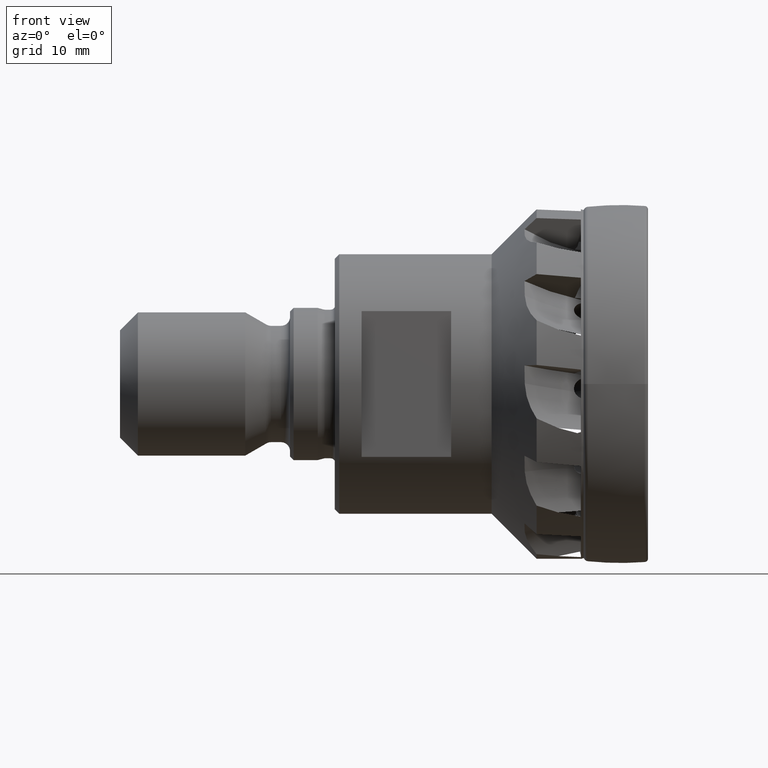
[diagram: clean part render]
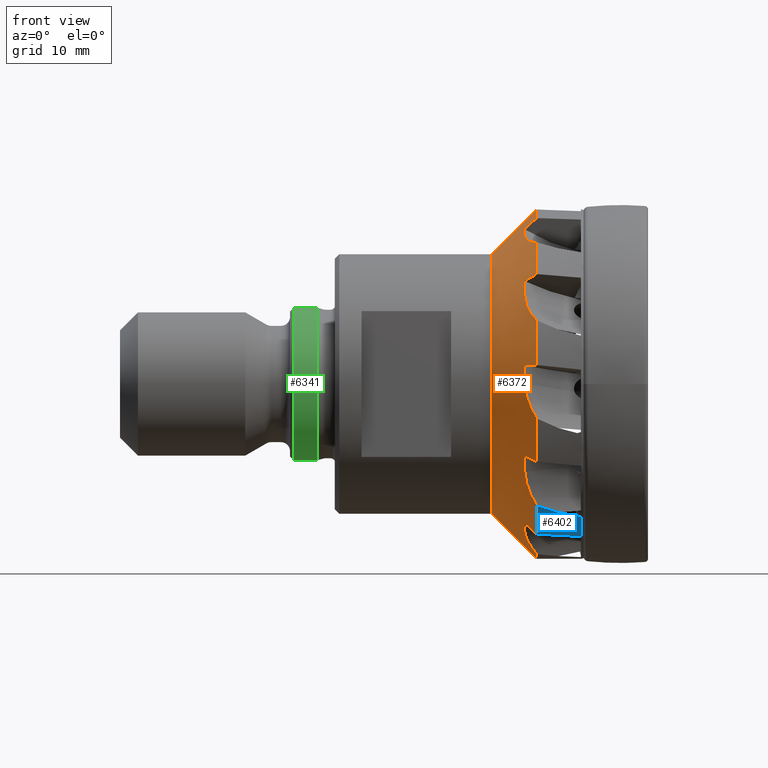
[diagram: same view with three faces highlighted in distinct colors, each labeled with its STEP entity id]
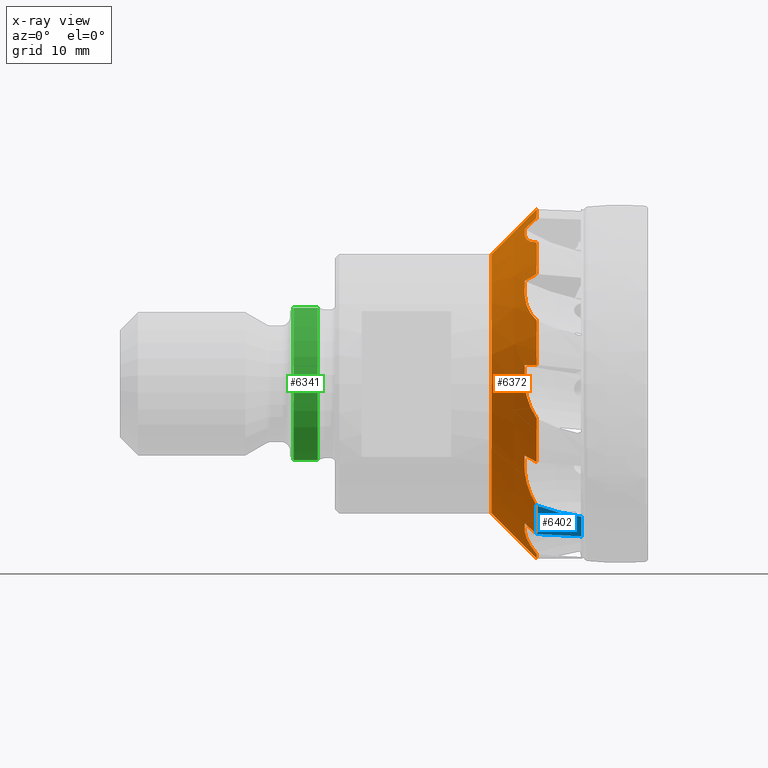
[diagram: x-ray of the same camera — body ghosted, the three highlighted faces saturated]
A machine part, front view with three faces highlighted in distinct colors.
The next image is the same camera in x-ray (body ghosted, the three faces saturated) — at least one of them is partly hidden behind the body in this view.
Their STEP definitions:

[orange] entity #6372 — the highlighted conical surface has half-angle 45 deg.
#167 = EDGE_LOOP ( 'NONE', ( #844, #843, #842, #841, #840, #839, #838, #837, #820, #819, #818, #817, #816, #815, #814, #813, #828, #827, #826, #825, #824, #823, #822, #821, #804 ) ) ;
#804 = ORIENTED_EDGE ( 'NONE', *, *, #6771, .F. ) ;
#813 = ORIENTED_EDGE ( 'NONE', *, *, #5806, .F. ) ;
#814 = ORIENTED_EDGE ( 'NONE', *, *, #5956, .F. ) ;
#815 = ORIENTED_EDGE ( 'NONE', *, *, #5840, .F. ) ;
#816 = ORIENTED_EDGE ( 'NONE', *, *, #6815, .F. ) ;
#817 = ORIENTED_EDGE ( 'NONE', *, *, #5808, .F. ) ;
#818 = ORIENTED_EDGE ( 'NONE', *, *, #5946, .F. ) ;
#819 = ORIENTED_EDGE ( 'NONE', *, *, #5836, .F. ) ;
#820 = ORIENTED_EDGE ( 'NONE', *, *, #6829, .F. ) ;
#821 = ORIENTED_EDGE ( 'NONE', *, *, #5810, .F. ) ;
#822 = ORIENTED_EDGE ( 'NONE', *, *, #5963, .F. ) ;
#823 = ORIENTED_EDGE ( 'NONE', *, *, #5832, .F. ) ;
#824 = ORIENTED_EDGE ( 'NONE', *, *, #6788, .F. ) ;
#825 = ORIENTED_EDGE ( 'NONE', *, *, #5804, .F. ) ;
#826 = ORIENTED_EDGE ( 'NONE', *, *, #5960, .F. ) ;
#827 = ORIENTED_EDGE ( 'NONE', *, *, #5830, .F. ) ;
#828 = ORIENTED_EDGE ( 'NONE', *, *, #6800, .F. ) ;
#837 = ORIENTED_EDGE ( 'NONE', *, *, #5803, .F. ) ;
#838 = ORIENTED_EDGE ( 'NONE', *, *, #5944, .F. ) ;
#839 = ORIENTED_EDGE ( 'NONE', *, *, #5842, .F. ) ;
#840 = ORIENTED_EDGE ( 'NONE', *, *, #6841, .F. ) ;
#841 = ORIENTED_EDGE ( 'NONE', *, *, #9840, .F. ) ;
#842 = ORIENTED_EDGE ( 'NONE', *, *, #9844, .T. ) ;
#843 = ORIENTED_EDGE ( 'NONE', *, *, #5799, .T. ) ;
#844 = ORIENTED_EDGE ( 'NONE', *, *, #9623, .F. ) ;
#1032 = CIRCLE ( 'NONE', #1033, 14.50000000000000000 ) ;
#1033 = AXIS2_PLACEMENT_3D ( 'NONE', #3575, #3576, #3577 ) ;
#1386 = LINE ( 'NONE', #1388, #8179 ) ;
#1388 = CARTESIAN_POINT ( 'NONE',  ( -12.00000000000000200, 2.391429037034993400E-015, 19.52749999999999600 ) ) ;
#1389 = DIRECTION ( 'NONE',  ( 0.7071067811865465700, 8.659560562354946400E-017, 0.7071067811865485700 ) ) ;
#1694 = CARTESIAN_POINT ( 'NONE',  ( -12.00000000000000200, -9.996731932388868800, -16.77464178222464100 ) ) ;
#1695 = CARTESIAN_POINT ( 'NONE',  ( -12.45141773891236700, -9.793318421093761800, -16.37036551565456600 ) ) ;
#1701 = CARTESIAN_POINT ( 'NONE',  ( -12.90279601430590300, -9.589879781806757800, -15.96605782114112900 ) ) ;
#1702 = CARTESIAN_POINT ( 'NONE',  ( -13.35412533337104400, -9.386409986145114500, -15.56171116380413400 ) ) ;
#1703 = CARTESIAN_POINT ( 'NONE',  ( -12.00000000000000200, -17.47884210055518000, -8.707085337462801900 ) ) ;
#1705 = CARTESIAN_POINT ( 'NONE',  ( -12.45141773891237200, -17.08915151431623200, -8.476960146999026300 ) ) ;
#1709 = CARTESIAN_POINT ( 'NONE',  ( -12.90279601430591000, -16.69942279783633400, -8.246822102884946700 ) ) ;
#1710 = CARTESIAN_POINT ( 'NONE',  ( -13.35412533337105500, -16.30964680605342200, -8.016668125565752600 ) ) ;
#1731 = CARTESIAN_POINT ( 'NONE',  ( -12.00000000000000200, -19.41154340139196300, 2.124909180618330700 ) ) ;
#1738 = CARTESIAN_POINT ( 'NONE',  ( -12.45141773891236700, -18.95929974791794200, 2.107820172990455100 ) ) ;
#1743 = CARTESIAN_POINT ( 'NONE',  ( -12.90279601430589700, -18.50701706803599900, 2.090721363776668600 ) ) ;
#1744 = CARTESIAN_POINT ( 'NONE',  ( -13.35412533337099500, -18.05468600349730600, 2.073610399469498300 ) ) ;
#1751 = CARTESIAN_POINT ( 'NONE',  ( -12.00000000000000200, -15.18121682769837800, 12.28226004774396400 ) ) ;
#1754 = CARTESIAN_POINT ( 'NONE',  ( -12.45141773891237100, -14.81000427156631200, 12.02338248120112900 ) ) ;
#1757 = CARTESIAN_POINT ( 'NONE',  ( -12.45141773891236900, -5.958637081482124600, 18.12160580479149300 ) ) ;
#1759 = CARTESIAN_POINT ( 'NONE',  ( -12.90279601430590600, -14.43876418346813000, 11.76447556977044200 ) ) ;
#1760 = CARTESIAN_POINT ( 'NONE',  ( -13.35412533337104800, -14.06748996314617500, 11.50553227410415900 ) ) ;
#1768 = CARTESIAN_POINT ( 'NONE',  ( -12.00000000000000200, -6.130961176562884400, 18.54008013201341500 ) ) ;
#1769 = CARTESIAN_POINT ( 'NONE',  ( -12.90279601430590600, -5.786305690081762900, 17.70309190617432900 ) ) ;
#1770 = CARTESIAN_POINT ( 'NONE',  ( -13.35412533337104800, -5.613965255630446900, 17.28452894591706700 ) ) ;
#2683 = CIRCLE ( 'NONE', #2707, 19.52749999999999600 ) ;
#2704 = VECTOR ( 'NONE', #5398, 1000.000000000000000 ) ;
#2707 = AXIS2_PLACEMENT_3D ( 'NONE', #5386, #5387, #5388 ) ;
#3276 = VERTEX_POINT ( 'NONE', #11497 ) ;
#3277 = VERTEX_POINT ( 'NONE', #11498 ) ;
#3325 = VERTEX_POINT ( 'NONE', #11546 ) ;
#3336 = VERTEX_POINT ( 'NONE', #11557 ) ;
#3345 = VERTEX_POINT ( 'NONE', #11566 ) ;
#3351 = VERTEX_POINT ( 'NONE', #11572 ) ;
#3575 = CARTESIAN_POINT ( 'NONE',  ( -17.02749999999998200, 0.0000000000000000000, 0.0000000000000000000 ) ) ;
#3576 = DIRECTION ( 'NONE',  ( 1.000000000000000000, -0.0000000000000000000, -0.0000000000000000000 ) ) ;
#3577 = DIRECTION ( 'NONE',  ( 0.0000000000000000000, 0.0000000000000000000, -1.000000000000000000 ) ) ;
#3581 = CARTESIAN_POINT ( 'NONE',  ( -12.00000000000000200, 0.0000000000000000000, 0.0000000000000000000 ) ) ;
#3582 = DIRECTION ( 'NONE',  ( 1.000000000000000000, -0.0000000000000000000, -0.0000000000000000000 ) ) ;
#3583 = DIRECTION ( 'NONE',  ( 0.0000000000000000000, 0.0000000000000000000, -1.000000000000000000 ) ) ;
#3584 = CARTESIAN_POINT ( 'NONE',  ( -12.00000000000000200, 0.0000000000000000000, 0.0000000000000000000 ) ) ;
#3585 = DIRECTION ( 'NONE',  ( 1.000000000000000000, -0.0000000000000000000, -0.0000000000000000000 ) ) ;
#3586 = DIRECTION ( 'NONE',  ( 0.0000000000000000000, 0.0000000000000000000, -1.000000000000000000 ) ) ;
#3587 = CARTESIAN_POINT ( 'NONE',  ( -12.00000000000000200, 0.0000000000000000000, 0.0000000000000000000 ) ) ;
#3588 = DIRECTION ( 'NONE',  ( 1.000000000000000000, -0.0000000000000000000, -0.0000000000000000000 ) ) ;
#3589 = DIRECTION ( 'NONE',  ( 0.0000000000000000000, 0.0000000000000000000, -1.000000000000000000 ) ) ;
#3590 = CARTESIAN_POINT ( 'NONE',  ( -12.00000000000000200, 0.0000000000000000000, 0.0000000000000000000 ) ) ;
#3591 = DIRECTION ( 'NONE',  ( 1.000000000000000000, -0.0000000000000000000, -0.0000000000000000000 ) ) ;
#3592 = DIRECTION ( 'NONE',  ( 0.0000000000000000000, 0.0000000000000000000, -1.000000000000000000 ) ) ;
#3595 = CARTESIAN_POINT ( 'NONE',  ( -12.00000000000000200, 0.0000000000000000000, 0.0000000000000000000 ) ) ;
#3596 = DIRECTION ( 'NONE',  ( 1.000000000000000000, -0.0000000000000000000, -0.0000000000000000000 ) ) ;
#3597 = DIRECTION ( 'NONE',  ( 0.0000000000000000000, 0.0000000000000000000, -1.000000000000000000 ) ) ;
#3653 = CARTESIAN_POINT ( 'NONE',  ( -13.35412533337104800, -14.06748996314617500, 11.50553227410415900 ) ) ;
#3660 = CARTESIAN_POINT ( 'NONE',  ( -13.36838950143772000, -14.48302671771570600, 10.97493646598593400 ) ) ;
#3680 = CARTESIAN_POINT ( 'NONE',  ( -13.36845952665350400, -6.253523129734415600, 17.06173106919737100 ) ) ;
#3681 = CARTESIAN_POINT ( 'NONE',  ( -13.35885651788389200, -14.88707561406218900, 10.43673353012622800 ) ) ;
#3682 = CARTESIAN_POINT ( 'NONE',  ( -13.32494707153037300, -15.28040683738157500, 9.891516567128734400 ) ) ;
#3702 = CARTESIAN_POINT ( 'NONE',  ( -13.35412533337105500, -16.30964680605342200, -8.016668125565752600 ) ) ;
#3703 = CARTESIAN_POINT ( 'NONE',  ( -13.35412533337104800, -5.613965255630446900, 17.28452894591706700 ) ) ;
#3704 = CARTESIAN_POINT ( 'NONE',  ( -13.36843800274453300, -15.99856592970495800, -8.617105819001821500 ) ) ;
#3705 = CARTESIAN_POINT ( 'NONE',  ( -13.35869141345807900, -6.884327122180541100, 16.82730184182169400 ) ) ;
#3706 = CARTESIAN_POINT ( 'NONE',  ( -13.32494707153139600, -7.506938632316959600, 16.58248490077189200 ) ) ;
#3727 = CARTESIAN_POINT ( 'NONE',  ( -13.35895997310231200, -18.16621888724286300, 0.7334263613639220300 ) ) ;
#3728 = CARTESIAN_POINT ( 'NONE',  ( -13.36834626547629600, -18.11720593524151100, 1.404622597222110900 ) ) ;
#3729 = CARTESIAN_POINT ( 'NONE',  ( -13.35874185885978700, -15.67677699080171500, -9.208160137280172500 ) ) ;
#3730 = CARTESIAN_POINT ( 'NONE',  ( -13.32494707153140300, -15.34535035706512400, -9.790462477974257300 ) ) ;
#3752 = CARTESIAN_POINT ( 'NONE',  ( -13.35889978558266700, -8.212610901820497100, -16.22045092694758500 ) ) ;
#3753 = CARTESIAN_POINT ( 'NONE',  ( -13.35412533337099500, -18.05468600349730600, 2.073610399469498300 ) ) ;
#3755 = CARTESIAN_POINT ( 'NONE',  ( -13.32494707153139900, -18.20245383777362500, 0.06006161353929373400 ) ) ;
#3757 = CARTESIAN_POINT ( 'NONE',  ( -13.36837135644139700, -8.802821142696339900, -15.89707954188599900 ) ) ;
#3758 = CARTESIAN_POINT ( 'NONE',  ( -13.35412533337104400, -9.386409986145114500, -15.56171116380413400 ) ) ;
#3759 = CARTESIAN_POINT ( 'NONE',  ( -13.32494707153139600, -7.616206563052884300, -16.53258390883322100 ) ) ;
#4177 = CARTESIAN_POINT ( 'NONE',  ( -12.64822328558747900, 2.231942278422366700E-015, 18.87927671441251600 ) ) ;
#4181 = CARTESIAN_POINT ( 'NONE',  ( -12.46279781287039000, -0.3852328533482683400, 19.06470218712960500 ) ) ;
#4186 = CARTESIAN_POINT ( 'NONE',  ( -12.24358420179304300, -0.7490119537043782300, 19.27202946251598100 ) ) ;
#4187 = CARTESIAN_POINT ( 'NONE',  ( -11.99999999998937000, -1.082537751060655500, 19.49747081720969500 ) ) ;
#4215 = CARTESIAN_POINT ( 'NONE',  ( -13.32494707153139600, -7.506938632316959600, 16.58248490077189200 ) ) ;
#4219 = CARTESIAN_POINT ( 'NONE',  ( -13.28859064116695500, -8.177745372645672400, 16.31871712338711000 ) ) ;
#4226 = CARTESIAN_POINT ( 'NONE',  ( -13.14813049340369700, -8.847965528193269000, 16.12233022931280500 ) ) ;
#4227 = CARTESIAN_POINT ( 'NONE',  ( -12.68541851912863700, -10.19148283484517500, 15.86103763030525600 ) ) ;
#4228 = CARTESIAN_POINT ( 'NONE',  ( -12.37396504623757700, -10.83393266689485100, 15.80271942246515900 ) ) ;
#4229 = CARTESIAN_POINT ( 'NONE',  ( -12.00000000000000000, -11.45181726841825300, 15.81705211159011700 ) ) ;
#4244 = CARTESIAN_POINT ( 'NONE',  ( -13.32494707153037300, -15.28040683738157500, 9.891516567128734400 ) ) ;
#4248 = CARTESIAN_POINT ( 'NONE',  ( -13.30700599510188000, -15.48851361289035300, 9.603048890538108400 ) ) ;
#4253 = CARTESIAN_POINT ( 'NONE',  ( -13.26315032292711700, -15.70811817342070100, 9.325311756497230300 ) ) ;
#4254 = CARTESIAN_POINT ( 'NONE',  ( -13.12468920553745400, -16.17073652737587600, 8.791511364867899300 ) ) ;
#4255 = CARTESIAN_POINT ( 'NONE',  ( -13.03096337434863700, -16.41020618043299000, 8.539795150347741200 ) ) ;
#4256 = CARTESIAN_POINT ( 'NONE',  ( -12.68829047848226900, -17.14259083156978000, 7.839119770591032000 ) ) ;
#4257 = CARTESIAN_POINT ( 'NONE',  ( -12.37332612303247500, -17.65858059569423200, 7.436277195291933300 ) ) ;
#4258 = CARTESIAN_POINT ( 'NONE',  ( -11.99999999998583700, -18.18522571776184200, 7.114831118488083900 ) ) ;
#4281 = CARTESIAN_POINT ( 'NONE',  ( -13.32494707153139900, -18.20245383777362500, 0.06006161353929373400 ) ) ;
#4285 = CARTESIAN_POINT ( 'NONE',  ( -13.30695388721281900, -18.22162250947060300, -0.2961554529752773400 ) ) ;
#4290 = CARTESIAN_POINT ( 'NONE',  ( -13.26296962331773500, -18.25628034489146100, -0.6481645204369131900 ) ) ;
#4291 = CARTESIAN_POINT ( 'NONE',  ( -13.12526029577404100, -18.35632924346735000, -1.344032080454261800 ) ) ;
#4292 = CARTESIAN_POINT ( 'NONE',  ( -13.03086869130440400, -18.42217221486361500, -1.688317911825745600 ) ) ;
#4293 = CARTESIAN_POINT ( 'NONE',  ( -12.80188338965853300, -18.58074708610858700, -2.346493527634376800 ) ) ;
#4294 = CARTESIAN_POINT ( 'NONE',  ( -12.66682733594082300, -18.67383547204763200, -2.663470338927870900 ) ) ;
#4295 = CARTESIAN_POINT ( 'NONE',  ( -12.35942202427597400, -18.88846404955148000, -3.274503210397287800 ) ) ;
#4296 = CARTESIAN_POINT ( 'NONE',  ( -12.18674424710689400, -19.01026733872961900, -3.568606010599000700 ) ) ;
#4297 = CARTESIAN_POINT ( 'NONE',  ( -11.99999999998580200, -19.14495349235754400, -3.846298483740066200 ) ) ;
#4317 = CARTESIAN_POINT ( 'NONE',  ( -13.32494707153140300, -15.34535035706512400, -9.790462477974257300 ) ) ;
#4321 = CARTESIAN_POINT ( 'NONE',  ( -13.30686701669498400, -15.16803864168190200, -10.10199153566063900 ) ) ;
#4328 = CARTESIAN_POINT ( 'NONE',  ( -13.26261439274308400, -15.00679060653959800, -10.41732345399271700 ) ) ;
#4329 = CARTESIAN_POINT ( 'NONE',  ( -13.12503089661706700, -14.71539471861066600, -11.05560370960807000 ) ) ;
#4330 = CARTESIAN_POINT ( 'NONE',  ( -13.03049783488119900, -14.58431325190887400, -11.38154341570424100 ) ) ;
#4331 = CARTESIAN_POINT ( 'NONE',  ( -12.68450010437347000, -14.24902858740453800, -12.34643135524322900 ) ) ;
#4332 = CARTESIAN_POINT ( 'NONE',  ( -12.37447707938345300, -14.10014212393306500, -12.97178012284988700 ) ) ;
#4333 = CARTESIAN_POINT ( 'NONE',  ( -11.99999999998579800, -14.02629380490696300, -13.58625549402715600 ) ) ;
#4359 = CARTESIAN_POINT ( 'NONE',  ( -13.32494707153139600, -7.616206563052884300, -16.53258390883322100 ) ) ;
#4364 = CARTESIAN_POINT ( 'NONE',  ( -13.30695388721287200, -7.300143076063066300, -16.69799826323438200 ) ) ;
#4368 = CARTESIAN_POINT ( 'NONE',  ( -13.26296962331799300, -6.994341750797913100, -16.87575399055873100 ) ) ;
#4369 = CARTESIAN_POINT ( 'NONE',  ( -13.12526029577500200, -6.402920168181215600, -17.25583550129424300 ) ) ;
#4370 = CARTESIAN_POINT ( 'NONE',  ( -13.03086869130585700, -6.117098919237849800, -17.45874987786036700 ) ) ;
#4371 = CARTESIAN_POINT ( 'NONE',  ( -12.80188338966115500, -5.584275702737340200, -17.87641068640125800 ) ) ;
#4372 = CARTESIAN_POINT ( 'NONE',  ( -12.66682733594415000, -5.334613766455025700, -18.09276378683135900 ) ) ;
#4373 = CARTESIAN_POINT ( 'NONE',  ( -12.35942202428088300, -4.867958649668231900, -18.54182903629070000 ) ) ;
#4374 = CARTESIAN_POINT ( 'NONE',  ( -12.18674424711265100, -4.651032247639248500, -18.77479992383541300 ) ) ;
#4375 = CARTESIAN_POINT ( 'NONE',  ( -11.99999999998390300, -4.454384939460537000, -19.01267238083870800 ) ) ;
#4551 = AXIS2_PLACEMENT_3D ( 'NONE', #3584, #3585, #3586 ) ;
#4553 = CIRCLE ( 'NONE', #4551, 19.52749999999999600 ) ;
#4748 = CONICAL_SURFACE ( 'NONE', #4749, 19.52749999999999600, 0.7853981633974497200 ) ;
#4749 = AXIS2_PLACEMENT_3D ( 'NONE', #8540, #8542, #8539 ) ;
#4889 = B_SPLINE_CURVE_WITH_KNOTS ( 'NONE', 3,
 ( #4359, #4364, #4368, #4369, #4370, #4371, #4372, #4373, #4374, #4375 ),
 .UNSPECIFIED., .F., .F.,
 ( 4, 2, 2, 2, 4 ),
 ( 0.004911172192141903200, 0.005979833985657517800, 0.007048495779173132400, 0.008117157572688747000, 0.009185819366204361600 ),
 .UNSPECIFIED. ) ;
#4900 = B_SPLINE_CURVE_WITH_KNOTS ( 'NONE', 3,
 ( #4177, #4181, #4186, #4187 ),
 .UNSPECIFIED., .F., .F.,
 ( 4, 4 ),
 ( 0.007791885502192534200, 0.009185819366210485100 ),
 .UNSPECIFIED. ) ;
#4905 = B_SPLINE_CURVE_WITH_KNOTS ( 'NONE', 3,
 ( #4317, #4321, #4328, #4329, #4330, #4331, #4332, #4333 ),
 .UNSPECIFIED., .F., .F.,
 ( 4, 2, 2, 4 ),
 ( 0.0004323090273732587900, 0.001502836894086141900, 0.002573364760799025200, 0.004714420494224791700 ),
 .UNSPECIFIED. ) ;
#4911 = B_SPLINE_CURVE_WITH_KNOTS ( 'NONE', 3,
 ( #4244, #4248, #4253, #4254, #4255, #4256, #4257, #4258 ),
 .UNSPECIFIED., .F., .F.,
 ( 4, 2, 2, 4 ),
 ( 0.002987934480018719500, 0.004055813754263023700, 0.005123693028507327900, 0.007259451576995939000 ),
 .UNSPECIFIED. ) ;
#4919 = B_SPLINE_CURVE_WITH_KNOTS ( 'NONE', 3,
 ( #4281, #4285, #4290, #4291, #4292, #4293, #4294, #4295, #4296, #4297 ),
 .UNSPECIFIED., .F., .F.,
 ( 4, 2, 2, 2, 4 ),
 ( 0.004911172192141902300, 0.005979833985660698400, 0.007048495779179493600, 0.008117157572698289700, 0.009185819366217084000 ),
 .UNSPECIFIED. ) ;
#4922 = B_SPLINE_CURVE_WITH_KNOTS ( 'NONE', 3,
 ( #4215, #4219, #4226, #4227, #4228, #4229 ),
 .UNSPECIFIED., .F., .F.,
 ( 4, 2, 4 ),
 ( 0.0001038139776742350600, 0.002240823431274717600, 0.004377832884875200800 ),
 .UNSPECIFIED. ) ;
#5384 = CARTESIAN_POINT ( 'NONE',  ( -12.00000000000000200, 0.0000000000000000000, -19.52749999999999600 ) ) ;
#5386 = CARTESIAN_POINT ( 'NONE',  ( -12.00000000000000200, 0.0000000000000000000, 0.0000000000000000000 ) ) ;
#5387 = DIRECTION ( 'NONE',  ( 1.000000000000000000, -0.0000000000000000000, -0.0000000000000000000 ) ) ;
#5388 = DIRECTION ( 'NONE',  ( 0.0000000000000000000, 0.0000000000000000000, -1.000000000000000000 ) ) ;
#5394 = LINE ( 'NONE', #5384, #2704 ) ;
#5398 = DIRECTION ( 'NONE',  ( 0.7071067811865465700, 0.0000000000000000000, -0.7071067811865485700 ) ) ;
#5799 = EDGE_CURVE ( 'NONE', #9407, #9406, #1032, .T. ) ;
#5803 = EDGE_CURVE ( 'NONE', #9260, #9182, #9949, .T. ) ;
#5804 = EDGE_CURVE ( 'NONE', #9256, #9317, #4553, .T. ) ;
#5806 = EDGE_CURVE ( 'NONE', #9240, #3325, #8764, .T. ) ;
#5808 = EDGE_CURVE ( 'NONE', #9255, #3345, #9925, .T. ) ;
#5810 = EDGE_CURVE ( 'NONE', #9235, #3276, #7957, .T. ) ;
#5830 = EDGE_CURVE ( 'NONE', #3351, #9228, #11309, .T. ) ;
#5832 = EDGE_CURVE ( 'NONE', #3336, #9253, #11282, .T. ) ;
#5836 = EDGE_CURVE ( 'NONE', #3277, #9247, #11258, .T. ) ;
#5840 = EDGE_CURVE ( 'NONE', #9205, #9224, #11292, .T. ) ;
#5842 = EDGE_CURVE ( 'NONE', #9202, #9265, #11345, .T. ) ;
#5944 = EDGE_CURVE ( 'NONE', #9182, #9202, #11319, .T. ) ;
#5946 = EDGE_CURVE ( 'NONE', #3345, #3277, #11311, .T. ) ;
#5956 = EDGE_CURVE ( 'NONE', #3325, #9205, #11298, .T. ) ;
#5960 = EDGE_CURVE ( 'NONE', #9317, #3351, #11285, .T. ) ;
#5963 = EDGE_CURVE ( 'NONE', #3276, #3336, #11283, .T. ) ;
#6372 = ADVANCED_FACE ( 'NONE', ( #8541 ), #4748, .T. ) ;
#6771 = EDGE_CURVE ( 'NONE', #9342, #9235, #4900, .T. ) ;
#6788 = EDGE_CURVE ( 'NONE', #9253, #9256, #4922, .T. ) ;
#6800 = EDGE_CURVE ( 'NONE', #9228, #9240, #4911, .T. ) ;
#6815 = EDGE_CURVE ( 'NONE', #9224, #9255, #4919, .T. ) ;
#6829 = EDGE_CURVE ( 'NONE', #9247, #9260, #4905, .T. ) ;
#6841 = EDGE_CURVE ( 'NONE', #9265, #9356, #4889, .T. ) ;
#7316 = CARTESIAN_POINT ( 'NONE',  ( -12.00000000000000200, -9.996731932388868800, -16.77464178222464100 ) ) ;
#7332 = CARTESIAN_POINT ( 'NONE',  ( -13.35412533337104400, -9.386409986145114500, -15.56171116380413400 ) ) ;
#7335 = CARTESIAN_POINT ( 'NONE',  ( -13.35412533337099500, -18.05468600349730600, 2.073610399469498300 ) ) ;
#7354 = CARTESIAN_POINT ( 'NONE',  ( -13.32494707153139900, -18.20245383777362500, 0.06006161353929373400 ) ) ;
#7358 = CARTESIAN_POINT ( 'NONE',  ( -13.32494707153037300, -15.28040683738157500, 9.891516567128734400 ) ) ;
#7365 = CARTESIAN_POINT ( 'NONE',  ( -11.99999999998937000, -1.082537751060655500, 19.49747081720969500 ) ) ;
#7370 = CARTESIAN_POINT ( 'NONE',  ( -11.99999999998583700, -18.18522571776184200, 7.114831118488083900 ) ) ;
#7377 = CARTESIAN_POINT ( 'NONE',  ( -13.32494707153140300, -15.34535035706512400, -9.790462477974257300 ) ) ;
#7383 = CARTESIAN_POINT ( 'NONE',  ( -13.32494707153139600, -7.506938632316959600, 16.58248490077189200 ) ) ;
#7385 = CARTESIAN_POINT ( 'NONE',  ( -11.99999999998580200, -19.14495349235754400, -3.846298483740066200 ) ) ;
#7386 = CARTESIAN_POINT ( 'NONE',  ( -12.00000000000000000, -11.45181726841825300, 15.81705211159011700 ) ) ;
#7390 = CARTESIAN_POINT ( 'NONE',  ( -11.99999999998579800, -14.02629380490696300, -13.58625549402715600 ) ) ;
#7395 = CARTESIAN_POINT ( 'NONE',  ( -13.32494707153139600, -7.616206563052884300, -16.53258390883322100 ) ) ;
#7447 = CARTESIAN_POINT ( 'NONE',  ( -12.00000000000000200, -15.18121682769837800, 12.28226004774396400 ) ) ;
#7486 = CARTESIAN_POINT ( 'NONE',  ( -12.64822328558747900, 2.231942278422366700E-015, 18.87927671441251600 ) ) ;
#7495 = CARTESIAN_POINT ( 'NONE',  ( -12.00000000000000200, 0.0000000000000000000, -19.52749999999999600 ) ) ;
#7508 = CARTESIAN_POINT ( 'NONE',  ( -11.99999999998390300, -4.454384939460537000, -19.01267238083870800 ) ) ;
#7562 = CARTESIAN_POINT ( 'NONE',  ( -17.02749999999998200, 0.0000000000000000000, -14.50000000000000000 ) ) ;
#7563 = CARTESIAN_POINT ( 'NONE',  ( -17.02749999999998200, 2.083583447900197800E-015, 14.50000000000000200 ) ) ;
#7957 = CIRCLE ( 'NONE', #7959, 19.52749999999999600 ) ;
#7959 = AXIS2_PLACEMENT_3D ( 'NONE', #3595, #3596, #3597 ) ;
#7960 = AXIS2_PLACEMENT_3D ( 'NONE', #3590, #3591, #3592 ) ;
#8179 = VECTOR ( 'NONE', #1389, 1000.000000000000000 ) ;
#8539 = DIRECTION ( 'NONE',  ( 0.0000000000000000000, 0.0000000000000000000, -1.000000000000000000 ) ) ;
#8540 = CARTESIAN_POINT ( 'NONE',  ( -12.00000000000000200, 0.0000000000000000000, 0.0000000000000000000 ) ) ;
#8541 = FACE_OUTER_BOUND ( 'NONE', #167, .T. ) ;
#8542 = DIRECTION ( 'NONE',  ( 1.000000000000000000, -0.0000000000000000000, -0.0000000000000000000 ) ) ;
#8764 = CIRCLE ( 'NONE', #8765, 19.52749999999999600 ) ;
#8765 = AXIS2_PLACEMENT_3D ( 'NONE', #3587, #3588, #3589 ) ;
#9182 = VERTEX_POINT ( 'NONE', #7316 ) ;
#9202 = VERTEX_POINT ( 'NONE', #7332 ) ;
#9205 = VERTEX_POINT ( 'NONE', #7335 ) ;
#9224 = VERTEX_POINT ( 'NONE', #7354 ) ;
#9228 = VERTEX_POINT ( 'NONE', #7358 ) ;
#9235 = VERTEX_POINT ( 'NONE', #7365 ) ;
#9240 = VERTEX_POINT ( 'NONE', #7370 ) ;
#9247 = VERTEX_POINT ( 'NONE', #7377 ) ;
#9253 = VERTEX_POINT ( 'NONE', #7383 ) ;
#9255 = VERTEX_POINT ( 'NONE', #7385 ) ;
#9256 = VERTEX_POINT ( 'NONE', #7386 ) ;
#9260 = VERTEX_POINT ( 'NONE', #7390 ) ;
#9265 = VERTEX_POINT ( 'NONE', #7395 ) ;
#9317 = VERTEX_POINT ( 'NONE', #7447 ) ;
#9342 = VERTEX_POINT ( 'NONE', #7486 ) ;
#9347 = VERTEX_POINT ( 'NONE', #7495 ) ;
#9356 = VERTEX_POINT ( 'NONE', #7508 ) ;
#9406 = VERTEX_POINT ( 'NONE', #7562 ) ;
#9407 = VERTEX_POINT ( 'NONE', #7563 ) ;
#9623 = EDGE_CURVE ( 'NONE', #9407, #9342, #1386, .T. ) ;
#9840 = EDGE_CURVE ( 'NONE', #9356, #9347, #2683, .T. ) ;
#9844 = EDGE_CURVE ( 'NONE', #9406, #9347, #5394, .T. ) ;
#9925 = CIRCLE ( 'NONE', #7960, 19.52749999999999600 ) ;
#9948 = AXIS2_PLACEMENT_3D ( 'NONE', #3581, #3582, #3583 ) ;
#9949 = CIRCLE ( 'NONE', #9948, 19.52749999999999600 ) ;
#11258 = B_SPLINE_CURVE_WITH_KNOTS ( 'NONE', 3,
 ( #3702, #3704, #3729, #3730 ),
 .UNSPECIFIED., .F., .F.,
 ( 4, 4 ),
 ( 0.0004567821357779263700, 0.002465826387814190000 ),
 .UNSPECIFIED. ) ;
#11282 = B_SPLINE_CURVE_WITH_KNOTS ( 'NONE', 3,
 ( #3703, #3680, #3705, #3706 ),
 .UNSPECIFIED., .F., .F.,
 ( 4, 4 ),
 ( 0.0001179907568379309400, 0.002118348836189511200 ),
 .UNSPECIFIED. ) ;
#11283 = B_SPLINE_CURVE_WITH_KNOTS ( 'NONE', 3,
 ( #1768, #1757, #1769, #1770 ),
 .UNSPECIFIED., .F., .F.,
 ( 4, 4 ),
 ( 2.832027944942234100E-007, 0.001917924717713383400 ),
 .UNSPECIFIED. ) ;
#11285 = B_SPLINE_CURVE_WITH_KNOTS ( 'NONE', 3,
 ( #1751, #1754, #1759, #1760 ),
 .UNSPECIFIED., .F., .F.,
 ( 4, 4 ),
 ( 2.832027878390748500E-007, 0.001917924696171891700 ),
 .UNSPECIFIED. ) ;
#11292 = B_SPLINE_CURVE_WITH_KNOTS ( 'NONE', 3,
 ( #3753, #3728, #3727, #3755 ),
 .UNSPECIFIED., .F., .F.,
 ( 4, 4 ),
 ( 0.004968968016972949800, 0.006984860348377443900 ),
 .UNSPECIFIED. ) ;
#11298 = B_SPLINE_CURVE_WITH_KNOTS ( 'NONE', 3,
 ( #1731, #1738, #1743, #1744 ),
 .UNSPECIFIED., .F., .F.,
 ( 4, 4 ),
 ( 2.832027813148789100E-007, 0.001917924666654904100 ),
 .UNSPECIFIED. ) ;
#11309 = B_SPLINE_CURVE_WITH_KNOTS ( 'NONE', 3,
 ( #3653, #3660, #3681, #3682 ),
 .UNSPECIFIED., .F., .F.,
 ( 4, 4 ),
 ( 0.002333850293465467800, 0.004352715805775475900 ),
 .UNSPECIFIED. ) ;
#11311 = B_SPLINE_CURVE_WITH_KNOTS ( 'NONE', 3,
 ( #1703, #1705, #1709, #1710 ),
 .UNSPECIFIED., .F., .F.,
 ( 4, 4 ),
 ( 2.832027928905857000E-007, 0.001917924714320202900 ),
 .UNSPECIFIED. ) ;
#11319 = B_SPLINE_CURVE_WITH_KNOTS ( 'NONE', 3,
 ( #1694, #1695, #1701, #1702 ),
 .UNSPECIFIED., .F., .F.,
 ( 4, 4 ),
 ( 2.832027862525319000E-007, 0.001917924689409450400 ),
 .UNSPECIFIED. ) ;
#11345 = B_SPLINE_CURVE_WITH_KNOTS ( 'NONE', 3,
 ( #3758, #3757, #3752, #3759 ),
 .UNSPECIFIED., .F., .F.,
 ( 4, 4 ),
 ( 0.003451904834163905000, 0.005470882781547860100 ),
 .UNSPECIFIED. ) ;
#11497 = CARTESIAN_POINT ( 'NONE',  ( -12.00000000000000200, -6.130961176562884400, 18.54008013201341500 ) ) ;
#11498 = CARTESIAN_POINT ( 'NONE',  ( -13.35412533337105500, -16.30964680605342200, -8.016668125565752600 ) ) ;
#11546 = CARTESIAN_POINT ( 'NONE',  ( -12.00000000000000200, -19.41154340139196300, 2.124909180618330700 ) ) ;
#11557 = CARTESIAN_POINT ( 'NONE',  ( -13.35412533337104800, -5.613965255630446900, 17.28452894591706700 ) ) ;
#11566 = CARTESIAN_POINT ( 'NONE',  ( -12.00000000000000200, -17.47884210055518000, -8.707085337462801900 ) ) ;
#11572 = CARTESIAN_POINT ( 'NONE',  ( -13.35412533337104800, -14.06748996314617500, 11.50553227410415900 ) ) ;

[blue] entity #6402 — the highlighted cylindrical surface (partial cylindrical patch) has radius 19.5275 mm, axis along (1, -0, -0).
#110 = EDGE_LOOP ( 'NONE', ( #870, #869, #852, #851 ) ) ;
#851 = ORIENTED_EDGE ( 'NONE', *, *, #6995, .F. ) ;
#852 = ORIENTED_EDGE ( 'NONE', *, *, #5943, .F. ) ;
#869 = ORIENTED_EDGE ( 'NONE', *, *, #5803, .T. ) ;
#870 = ORIENTED_EDGE ( 'NONE', *, *, #6826, .F. ) ;
#1690 = CARTESIAN_POINT ( 'NONE',  ( -7.000000000000004400, -9.541203967584643000, -17.03786028522835100 ) ) ;
#1696 = CARTESIAN_POINT ( 'NONE',  ( -8.665554812160047900, -9.694224035847780000, -16.95216902717142200 ) ) ;
#1697 = CARTESIAN_POINT ( 'NONE',  ( -10.33232230426576400, -9.846075876543995500, -16.86442421834605900 ) ) ;
#1698 = CARTESIAN_POINT ( 'NONE',  ( -12.00000000000000200, -9.996731932388868800, -16.77464178222464100 ) ) ;
#3581 = CARTESIAN_POINT ( 'NONE',  ( -12.00000000000000200, 0.0000000000000000000, 0.0000000000000000000 ) ) ;
#3582 = DIRECTION ( 'NONE',  ( 1.000000000000000000, -0.0000000000000000000, -0.0000000000000000000 ) ) ;
#3583 = DIRECTION ( 'NONE',  ( 0.0000000000000000000, 0.0000000000000000000, -1.000000000000000000 ) ) ;
#4313 = CARTESIAN_POINT ( 'NONE',  ( -11.99999999998579800, -14.02629380490696300, -13.58625549402715600 ) ) ;
#4318 = CARTESIAN_POINT ( 'NONE',  ( -11.22009272497110600, -13.71297139345873900, -13.90972594549137900 ) ) ;
#4322 = CARTESIAN_POINT ( 'NONE',  ( -10.40596220677663200, -13.45537375441956300, -14.15498809728205400 ) ) ;
#4323 = CARTESIAN_POINT ( 'NONE',  ( -8.734193281968174500, -13.02042000402936000, -14.55607893026111000 ) ) ;
#4324 = CARTESIAN_POINT ( 'NONE',  ( -7.876021155023038600, -12.84370015673381500, -14.71044045196439500 ) ) ;
#4325 = CARTESIAN_POINT ( 'NONE',  ( -6.999999999999954700, -12.70276053012484900, -14.83115407391826000 ) ) ;
#4766 = AXIS2_PLACEMENT_3D ( 'NONE', #8614, #8610, #8616 ) ;
#4894 = B_SPLINE_CURVE_WITH_KNOTS ( 'NONE', 3,
 ( #4313, #4318, #4322, #4323, #4324, #4325 ),
 .UNSPECIFIED., .F., .F.,
 ( 4, 2, 4 ),
 ( 2.273747982393871500E-007, 0.002660185682901166400, 0.005320143991004093300 ),
 .UNSPECIFIED. ) ;
#5803 = EDGE_CURVE ( 'NONE', #9260, #9182, #9949, .T. ) ;
#5943 = EDGE_CURVE ( 'NONE', #9188, #9182, #8796, .T. ) ;
#6402 = ADVANCED_FACE ( 'NONE', ( #8613 ), #8612, .T. ) ;
#6826 = EDGE_CURVE ( 'NONE', #9260, #9263, #4894, .T. ) ;
#6995 = EDGE_CURVE ( 'NONE', #9263, #9188, #8071, .T. ) ;
#7185 = CARTESIAN_POINT ( 'NONE',  ( -7.000000000000002700, 0.0000000000000000000, 0.0000000000000000000 ) ) ;
#7186 = DIRECTION ( 'NONE',  ( 1.000000000000000000, -0.0000000000000000000, -0.0000000000000000000 ) ) ;
#7187 = DIRECTION ( 'NONE',  ( 0.0000000000000000000, 0.0000000000000000000, -1.000000000000000000 ) ) ;
#7316 = CARTESIAN_POINT ( 'NONE',  ( -12.00000000000000200, -9.996731932388868800, -16.77464178222464100 ) ) ;
#7320 = CARTESIAN_POINT ( 'NONE',  ( -7.000000000000004400, -9.541203967584643000, -17.03786028522835100 ) ) ;
#7390 = CARTESIAN_POINT ( 'NONE',  ( -11.99999999998579800, -14.02629380490696300, -13.58625549402715600 ) ) ;
#7393 = CARTESIAN_POINT ( 'NONE',  ( -6.999999999999954700, -12.70276053012484900, -14.83115407391826000 ) ) ;
#8071 = CIRCLE ( 'NONE', #8080, 19.52750000000000000 ) ;
#8080 = AXIS2_PLACEMENT_3D ( 'NONE', #7185, #7186, #7187 ) ;
#8610 = DIRECTION ( 'NONE',  ( 1.000000000000000000, -0.0000000000000000000, -0.0000000000000000000 ) ) ;
#8612 = CYLINDRICAL_SURFACE ( 'NONE', #4766, 19.52749999999999600 ) ;
#8613 = FACE_OUTER_BOUND ( 'NONE', #110, .T. ) ;
#8614 = CARTESIAN_POINT ( 'NONE',  ( 0.0000000000000000000, 0.0000000000000000000, 0.0000000000000000000 ) ) ;
#8616 = DIRECTION ( 'NONE',  ( 0.0000000000000000000, 0.0000000000000000000, -1.000000000000000000 ) ) ;
#8796 =( BOUNDED_CURVE ( )  B_SPLINE_CURVE ( 3, ( #1690, #1696, #1697, #1698 ),
 .UNSPECIFIED., .F., .T. ) 
 B_SPLINE_CURVE_WITH_KNOTS ( ( 4, 4 ),
 ( 1.510086083071616700, 1.537028804289248200 ),
 .UNSPECIFIED. ) 
 CURVE ( )  GEOMETRIC_REPRESENTATION_ITEM ( )  RATIONAL_B_SPLINE_CURVE ( ( 1.000000000000000000, 0.9999395083959463600, 0.9999395083959463600, 1.000000000000000000 ) ) 
 REPRESENTATION_ITEM ( '' )  );
#9182 = VERTEX_POINT ( 'NONE', #7316 ) ;
#9188 = VERTEX_POINT ( 'NONE', #7320 ) ;
#9260 = VERTEX_POINT ( 'NONE', #7390 ) ;
#9263 = VERTEX_POINT ( 'NONE', #7393 ) ;
#9948 = AXIS2_PLACEMENT_3D ( 'NONE', #3581, #3582, #3583 ) ;
#9949 = CIRCLE ( 'NONE', #9948, 19.52749999999999600 ) ;

[green] entity #6341 — the highlighted cylindrical surface (partial cylindrical patch) has radius 8.5 mm, axis along (1, -0, -0).
#169 = EDGE_LOOP ( 'NONE', ( #294, #282, #283, #238 ) ) ;
#238 = ORIENTED_EDGE ( 'NONE', *, *, #5797, .F. ) ;
#282 = ORIENTED_EDGE ( 'NONE', *, *, #5780, .F. ) ;
#283 = ORIENTED_EDGE ( 'NONE', *, *, #9650, .T. ) ;
#294 = ORIENTED_EDGE ( 'NONE', *, *, #9652, .F. ) ;
#1045 = CARTESIAN_POINT ( 'NONE',  ( -39.14999999854023100, 0.0000000000000000000, -8.500000000000000000 ) ) ;
#1460 = LINE ( 'NONE', #1461, #3379 ) ;
#1461 = CARTESIAN_POINT ( 'NONE',  ( 0.0000000000000000000, 0.0000000000000000000, -8.500000000000001800 ) ) ;
#1468 = CARTESIAN_POINT ( 'NONE',  ( 0.0000000000000000000, 1.040949779275250100E-015, 8.499999999999998200 ) ) ;
#1469 = DIRECTION ( 'NONE',  ( 1.000000000000000000, -0.0000000000000000000, -0.0000000000000000000 ) ) ;
#1471 = LINE ( 'NONE', #1468, #3381 ) ;
#1478 = DIRECTION ( 'NONE',  ( 1.000000000000000000, -0.0000000000000000000, -0.0000000000000000000 ) ) ;
#3304 = VERTEX_POINT ( 'NONE', #11525 ) ;
#3379 = VECTOR ( 'NONE', #1469, 1000.000000000000000 ) ;
#3381 = VECTOR ( 'NONE', #1478, 1000.000000000000000 ) ;
#3542 = CARTESIAN_POINT ( 'NONE',  ( -39.14999999854023100, 0.0000000000000000000, 0.0000000000000000000 ) ) ;
#3543 = DIRECTION ( 'NONE',  ( -1.000000000000000000, 0.0000000000000000000, 0.0000000000000000000 ) ) ;
#3544 = DIRECTION ( 'NONE',  ( 0.0000000000000000000, 0.0000000000000000000, -1.000000000000000000 ) ) ;
#3572 = CARTESIAN_POINT ( 'NONE',  ( -36.44983380172519100, 0.0000000000000000000, 0.0000000000000000000 ) ) ;
#3573 = DIRECTION ( 'NONE',  ( 1.000000000000000000, -0.0000000000000000000, -0.0000000000000000000 ) ) ;
#3574 = DIRECTION ( 'NONE',  ( 0.0000000000000000000, 0.0000000000000000000, 1.000000000000000000 ) ) ;
#4727 = AXIS2_PLACEMENT_3D ( 'NONE', #8467, #8469, #8475 ) ;
#4957 = AXIS2_PLACEMENT_3D ( 'NONE', #3572, #3573, #3574 ) ;
#4961 = CIRCLE ( 'NONE', #4957, 8.500000000000000000 ) ;
#5780 = EDGE_CURVE ( 'NONE', #9475, #3304, #8216, .T. ) ;
#5797 = EDGE_CURVE ( 'NONE', #9436, #9344, #4961, .T. ) ;
#6341 = ADVANCED_FACE ( 'NONE', ( #8473 ), #8472, .T. ) ;
#7490 = CARTESIAN_POINT ( 'NONE',  ( -36.44983380172519100, 1.040949779275250100E-015, -8.500000000000000000 ) ) ;
#7592 = CARTESIAN_POINT ( 'NONE',  ( -36.44983380172519100, 0.0000000000000000000, 8.500000000000000000 ) ) ;
#8215 = AXIS2_PLACEMENT_3D ( 'NONE', #3542, #3543, #3544 ) ;
#8216 = CIRCLE ( 'NONE', #8215, 8.500000000000000000 ) ;
#8467 = CARTESIAN_POINT ( 'NONE',  ( 0.0000000000000000000, 0.0000000000000000000, -2.418677428316023100E-015 ) ) ;
#8469 = DIRECTION ( 'NONE',  ( 1.000000000000000000, -0.0000000000000000000, -0.0000000000000000000 ) ) ;
#8472 = CYLINDRICAL_SURFACE ( 'NONE', #4727, 8.500000000000000000 ) ;
#8473 = FACE_OUTER_BOUND ( 'NONE', #169, .T. ) ;
#8475 = DIRECTION ( 'NONE',  ( 0.0000000000000000000, 0.0000000000000000000, -1.000000000000000000 ) ) ;
#9344 = VERTEX_POINT ( 'NONE', #7490 ) ;
#9436 = VERTEX_POINT ( 'NONE', #7592 ) ;
#9475 = VERTEX_POINT ( 'NONE', #1045 ) ;
#9650 = EDGE_CURVE ( 'NONE', #9475, #9344, #1460, .T. ) ;
#9652 = EDGE_CURVE ( 'NONE', #3304, #9436, #1471, .T. ) ;
#11525 = CARTESIAN_POINT ( 'NONE',  ( -39.14999999854023100, 1.040949779275250300E-015, 8.500000000000000000 ) ) ;